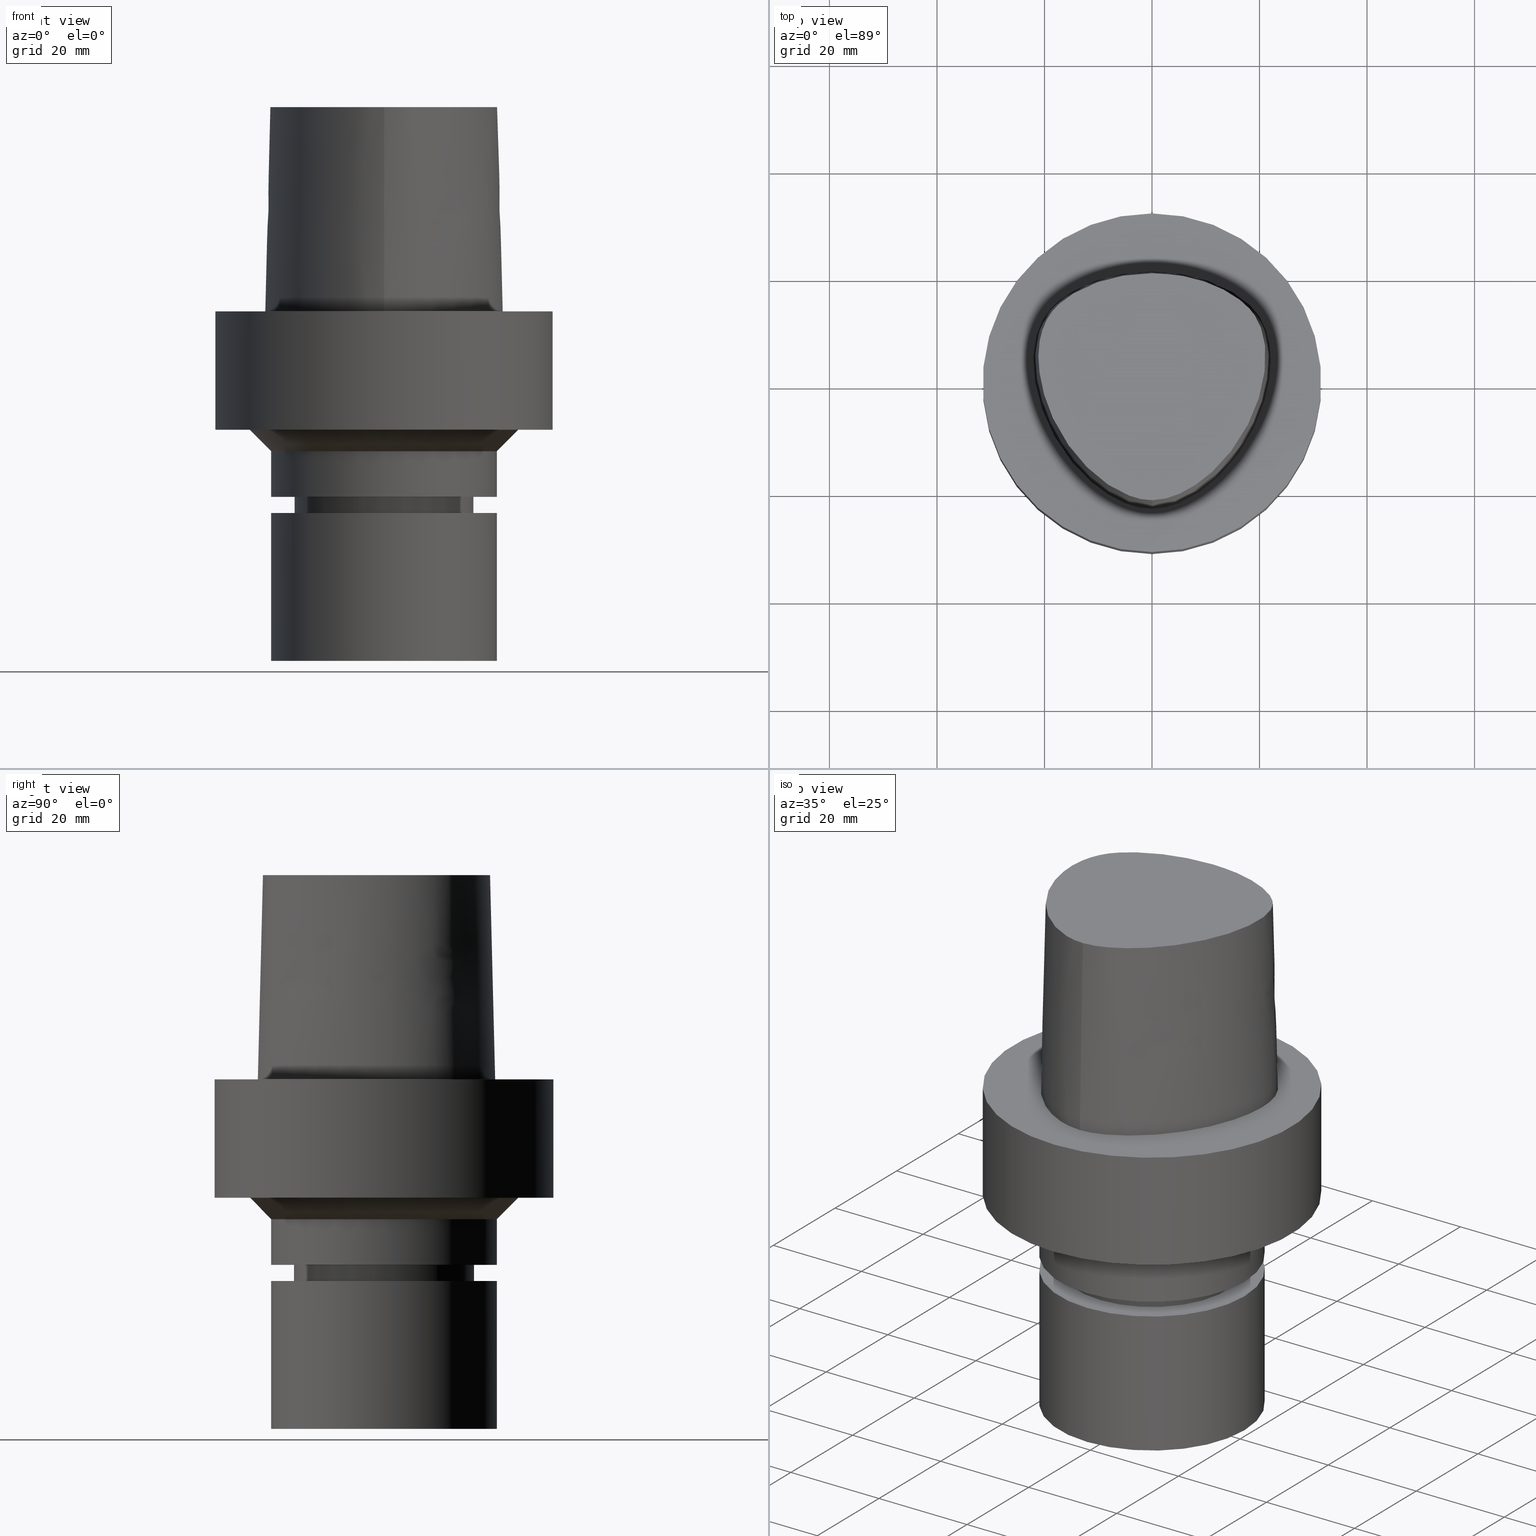
[diagram: canonical four-view strip — front | top / right | iso, engineering-drawing reading convention]
A machine part, canonical four-view strip (front | top / right | iso — engineering-drawing reading convention). The complete STEP part file that produces these views, byte-faithful:
ISO-10303-21;
HEADER;
FILE_DESCRIPTION((''),'1');
FILE_NAME('V:/90_\X2\53D65F9730C730FC30BF\X0\/00_\X2\6DE18DEF30C730FC30BF\X0\/ALL/CAPTO-BKUS\X2\52A05DE556F3\X0\_201801/C6-MEGAER/C6-MEGAER25-65NL.stp','2018-02-01T08:13:47',(''),(''),'Spatial Interop R21 SP3','Kubotek KeyCreator 2011 V10.0.2 (22737)',' ');
FILE_SCHEMA(('automotive_design'));
ENDSEC;
DATA;
#1=MECHANICAL_DESIGN_GEOMETRIC_PRESENTATION_REPRESENTATION(' ',(#14,#15,#16,#17,#18,#19,#20,#21,#22,#23,#24,#25,#26,#27,#28,#29,#30,#31,#32,#33,#34,#35,#36,#37,#38,#39,#40,#41,#42,#43,#44,#45,#46,#47,#48,#49,#50,#51,#52,#53),#10);
#2=PRODUCT_DEFINITION_CONTEXT('',#54,'design');
#3=APPLICATION_PROTOCOL_DEFINITION('INTERNATIONAL STANDARD','automotive_design',1994,#54);
#4=PRODUCT_CATEGORY_RELATIONSHIP('NONE','NONE',#55,#56);
#5=SHAPE_DEFINITION_REPRESENTATION(#57,#58);
#6=PRODUCT_DEFINITION_CONTEXT('',#59,'design');
#7=APPLICATION_PROTOCOL_DEFINITION('INTERNATIONAL STANDARD','automotive_design',1994,#59);
#8=PRODUCT_CATEGORY_RELATIONSHIP('NONE','NONE',#60,#61);
#9=SHAPE_DEFINITION_REPRESENTATION(#62,#63);
#10= (GEOMETRIC_REPRESENTATION_CONTEXT(3)GLOBAL_UNCERTAINTY_ASSIGNED_CONTEXT((#66))GLOBAL_UNIT_ASSIGNED_CONTEXT((#68,#69,#70))REPRESENTATION_CONTEXT('NONE','WORKSPACE'));
#14=STYLED_ITEM('',(#72),#73);
#15=STYLED_ITEM('',(#74,#75),#76);
#16=STYLED_ITEM('',(#77),#78);
#17=STYLED_ITEM('',(#79),#80);
#18=STYLED_ITEM('',(#81),#82);
#19=STYLED_ITEM('',(#83,#84),#85);
#20=STYLED_ITEM('',(#86,#87),#88);
#21=STYLED_ITEM('',(#89),#90);
#22=STYLED_ITEM('',(#91),#92);
#23=STYLED_ITEM('',(#93,#94),#95);
#24=STYLED_ITEM('',(#96),#97);
#25=STYLED_ITEM('',(#98),#99);
#26=STYLED_ITEM('',(#100),#101);
#27=STYLED_ITEM('',(#102),#103);
#28=STYLED_ITEM('',(#104,#105),#106);
#29=STYLED_ITEM('',(#107,#108),#109);
#30=STYLED_ITEM('',(#110),#111);
#31=STYLED_ITEM('',(#112,#113),#114);
#32=STYLED_ITEM('',(#115),#116);
#33=STYLED_ITEM('',(#117,#118),#119);
#34=STYLED_ITEM('',(#120),#121);
#35=STYLED_ITEM('',(#122),#123);
#36=STYLED_ITEM('',(#124),#125);
#37=STYLED_ITEM('',(#126,#127),#128);
#38=STYLED_ITEM('',(#129,#130),#131);
#39=STYLED_ITEM('',(#132,#133),#134);
#40=STYLED_ITEM('',(#135,#136),#137);
#41=STYLED_ITEM('',(#138),#139);
#42=STYLED_ITEM('',(#140,#141),#142);
#43=STYLED_ITEM('',(#143,#144),#145);
#44=STYLED_ITEM('',(#146),#147);
#45=STYLED_ITEM('',(#148),#149);
#46=STYLED_ITEM('',(#150,#151),#152);
#47=STYLED_ITEM('',(#153,#154),#155);
#48=STYLED_ITEM('',(#156,#157),#158);
#49=STYLED_ITEM('',(#159,#160),#161);
#50=STYLED_ITEM('',(#162,#163),#164);
#51=STYLED_ITEM('',(#165,#166),#167);
#52=STYLED_ITEM('',(#168),#169);
#53=STYLED_ITEM('',(#170),#171);
#54=APPLICATION_CONTEXT(' ');
#55=PRODUCT_CATEGORY('part','NONE');
#56=PRODUCT_RELATED_PRODUCT_CATEGORY('detail',' ',(#172));
#57=PRODUCT_DEFINITION_SHAPE('NONE','NONE',#173);
#58=ADVANCED_BREP_SHAPE_REPRESENTATION('Unnamed[1]',(#142,#174),#10);
#59=APPLICATION_CONTEXT(' ');
#60=PRODUCT_CATEGORY('part','NONE');
#61=PRODUCT_RELATED_PRODUCT_CATEGORY('detail',' ',(#175));
#62=PRODUCT_DEFINITION_SHAPE('NONE','NONE',#176);
#63=ADVANCED_BREP_SHAPE_REPRESENTATION('Unnamed[1]',(#95,#177),#10);
#66=UNCERTAINTY_MEASURE_WITH_UNIT(LENGTH_MEASURE(1.0E-006),#68,'','');
#68= (CONVERSION_BASED_UNIT('MILLIMETRE',#180)LENGTH_UNIT()NAMED_UNIT(#183));
#69= (NAMED_UNIT(#185)PLANE_ANGLE_UNIT()SI_UNIT($,.RADIAN.));
#70= (NAMED_UNIT(#185)SOLID_ANGLE_UNIT()SI_UNIT($,.STERADIAN.));
#72=PRESENTATION_STYLE_ASSIGNMENT((#191));
#73=EDGE_CURVE('Unnamed[1]',#192,#192,#193,.T.);
#74=PRESENTATION_STYLE_ASSIGNMENT((#194));
#75=PRESENTATION_STYLE_ASSIGNMENT((#195));
#76=ADVANCED_FACE('Unnamed[1]',(#196,#197),#198,.T.);
#77=PRESENTATION_STYLE_ASSIGNMENT((#199));
#78=EDGE_CURVE('Unnamed[1]',#200,#200,#201,.T.);
#79=PRESENTATION_STYLE_ASSIGNMENT((#202));
#80=EDGE_CURVE('Unnamed[1]',#203,#204,#205,.T.);
#81=PRESENTATION_STYLE_ASSIGNMENT((#206));
#82=EDGE_CURVE('Unnamed[1]',#207,#204,#208,.T.);
#83=PRESENTATION_STYLE_ASSIGNMENT((#209));
#84=PRESENTATION_STYLE_ASSIGNMENT((#210));
#85=ADVANCED_FACE('Unnamed[1]',(#211),#212,.T.);
#86=PRESENTATION_STYLE_ASSIGNMENT((#213));
#87=PRESENTATION_STYLE_ASSIGNMENT((#214));
#88=ADVANCED_FACE('Unnamed[1]',(#215),#216,.T.);
#89=PRESENTATION_STYLE_ASSIGNMENT((#217));
#90=EDGE_CURVE('Unnamed[1]',#207,#203,#218,.T.);
#91=PRESENTATION_STYLE_ASSIGNMENT((#219));
#92=EDGE_CURVE('Unnamed[1]',#220,#220,#221,.T.);
#93=PRESENTATION_STYLE_ASSIGNMENT((#222));
#94=PRESENTATION_STYLE_ASSIGNMENT((#223));
#95=MANIFOLD_SOLID_BREP('Unnamed[1]',#224);
#96=PRESENTATION_STYLE_ASSIGNMENT((#225));
#97=EDGE_CURVE('Unnamed[1]',#226,#226,#227,.T.);
#98=PRESENTATION_STYLE_ASSIGNMENT((#228));
#99=EDGE_CURVE('Unnamed[1]',#229,#229,#230,.T.);
#100=PRESENTATION_STYLE_ASSIGNMENT((#231));
#101=EDGE_CURVE('Unnamed[1]',#232,#203,#233,.T.);
#102=PRESENTATION_STYLE_ASSIGNMENT((#234));
#103=EDGE_CURVE('Unnamed[1]',#235,#235,#236,.T.);
#104=PRESENTATION_STYLE_ASSIGNMENT((#237));
#105=PRESENTATION_STYLE_ASSIGNMENT((#238));
#106=ADVANCED_FACE('Unnamed[1]',(#239),#240,.T.);
#107=PRESENTATION_STYLE_ASSIGNMENT((#241));
#108=PRESENTATION_STYLE_ASSIGNMENT((#242));
#109=ADVANCED_FACE('Unnamed[1]',(#243,#244),#245,.T.);
#110=PRESENTATION_STYLE_ASSIGNMENT((#246));
#111=EDGE_CURVE('Unnamed[1]',#247,#247,#248,.T.);
#112=PRESENTATION_STYLE_ASSIGNMENT((#249));
#113=PRESENTATION_STYLE_ASSIGNMENT((#250));
#114=ADVANCED_FACE('Unnamed[1]',(#251),#252,.T.);
#115=PRESENTATION_STYLE_ASSIGNMENT((#253));
#116=EDGE_CURVE('Unnamed[1]',#204,#232,#254,.T.);
#117=PRESENTATION_STYLE_ASSIGNMENT((#255));
#118=PRESENTATION_STYLE_ASSIGNMENT((#256));
#119=ADVANCED_FACE('Unnamed[1]',(#257),#258,.T.);
#120=PRESENTATION_STYLE_ASSIGNMENT((#259));
#121=EDGE_CURVE('Unnamed[1]',#260,#260,#261,.T.);
#122=PRESENTATION_STYLE_ASSIGNMENT((#262));
#123=EDGE_CURVE('Unnamed[1]',#263,#263,#264,.T.);
#124=PRESENTATION_STYLE_ASSIGNMENT((#265));
#125=EDGE_CURVE('Unnamed[1]',#266,#266,#267,.T.);
#126=PRESENTATION_STYLE_ASSIGNMENT((#268));
#127=PRESENTATION_STYLE_ASSIGNMENT((#269));
#128=ADVANCED_FACE('Unnamed[1]',(#270),#271,.T.);
#129=PRESENTATION_STYLE_ASSIGNMENT((#272));
#130=PRESENTATION_STYLE_ASSIGNMENT((#273));
#131=ADVANCED_FACE('Unnamed[1]',(#274,#275),#276,.T.);
#132=PRESENTATION_STYLE_ASSIGNMENT((#277));
#133=PRESENTATION_STYLE_ASSIGNMENT((#278));
#134=ADVANCED_FACE('Unnamed[1]',(#279,#280),#281,.T.);
#135=PRESENTATION_STYLE_ASSIGNMENT((#282));
#136=PRESENTATION_STYLE_ASSIGNMENT((#283));
#137=ADVANCED_FACE('Unnamed[1]',(#284,#285),#286,.T.);
#138=PRESENTATION_STYLE_ASSIGNMENT((#287));
#139=EDGE_CURVE('Unnamed[1]',#288,#207,#289,.T.);
#140=PRESENTATION_STYLE_ASSIGNMENT((#290));
#141=PRESENTATION_STYLE_ASSIGNMENT((#291));
#142=MANIFOLD_SOLID_BREP('Unnamed[1]',#292);
#143=PRESENTATION_STYLE_ASSIGNMENT((#293));
#144=PRESENTATION_STYLE_ASSIGNMENT((#294));
#145=ADVANCED_FACE('Unnamed[1]',(#295),#296,.T.);
#146=PRESENTATION_STYLE_ASSIGNMENT((#297));
#147=EDGE_CURVE('Unnamed[1]',#288,#232,#298,.T.);
#148=PRESENTATION_STYLE_ASSIGNMENT((#299));
#149=EDGE_CURVE('Unnamed[1]',#207,#288,#300,.T.);
#150=PRESENTATION_STYLE_ASSIGNMENT((#301));
#151=PRESENTATION_STYLE_ASSIGNMENT((#302));
#152=ADVANCED_FACE('Unnamed[1]',(#303,#304),#305,.T.);
#153=PRESENTATION_STYLE_ASSIGNMENT((#306));
#154=PRESENTATION_STYLE_ASSIGNMENT((#307));
#155=ADVANCED_FACE('Unnamed[1]',(#308,#309),#310,.T.);
#156=PRESENTATION_STYLE_ASSIGNMENT((#311));
#157=PRESENTATION_STYLE_ASSIGNMENT((#312));
#158=ADVANCED_FACE('Unnamed[1]',(#313,#314),#315,.T.);
#159=PRESENTATION_STYLE_ASSIGNMENT((#316));
#160=PRESENTATION_STYLE_ASSIGNMENT((#317));
#161=ADVANCED_FACE('Unnamed[1]',(#318,#319),#320,.T.);
#162=PRESENTATION_STYLE_ASSIGNMENT((#321));
#163=PRESENTATION_STYLE_ASSIGNMENT((#322));
#164=ADVANCED_FACE('Unnamed[1]',(#323,#324),#325,.T.);
#165=PRESENTATION_STYLE_ASSIGNMENT((#326));
#166=PRESENTATION_STYLE_ASSIGNMENT((#327));
#167=ADVANCED_FACE('Unnamed[1]',(#328,#329),#330,.T.);
#168=PRESENTATION_STYLE_ASSIGNMENT((#331));
#169=EDGE_CURVE('Unnamed[1]',#332,#332,#333,.T.);
#170=PRESENTATION_STYLE_ASSIGNMENT((#334));
#171=EDGE_CURVE('Unnamed[1]',#335,#335,#336,.T.);
#172=PRODUCT('Unnamed[1]','Unnamed[1]','PART-Unnamed[1]-DESC',(#337));
#173=PRODUCT_DEFINITION('NONE','NONE',#338,#2);
#174=AXIS2_PLACEMENT_3D('',#339,#340,#341);
#175=PRODUCT('Unnamed[1]','Unnamed[1]','PART-Unnamed[1]-DESC',(#342));
#176=PRODUCT_DEFINITION('NONE','NONE',#343,#6);
#177=AXIS2_PLACEMENT_3D('',#344,#345,#346);
#180=LENGTH_MEASURE_WITH_UNIT(LENGTH_MEASURE(1.0),#347);
#183=DIMENSIONAL_EXPONENTS(1.0,0.0,0.0,0.0,0.0,0.0,0.0);
#185=DIMENSIONAL_EXPONENTS(0.0,0.0,0.0,0.0,0.0,0.0,0.0);
#191=CURVE_STYLE('',#348,POSITIVE_LENGTH_MEASURE(1000.0),#349);
#192=VERTEX_POINT('',#350);
#193=CIRCLE('',#351,21.0);
#194=SURFACE_STYLE_USAGE(.BOTH.,#352);
#195=CURVE_STYLE('',#353,POSITIVE_LENGTH_MEASURE(1000.0),#354);
#196=FACE_BOUND('',#355,.T.);
#197=FACE_BOUND('',#356,.T.);
#198=CYLINDRICAL_SURFACE('',#357,21.0000000000002);
#199=CURVE_STYLE('',#358,POSITIVE_LENGTH_MEASURE(1000.0),#359);
#200=VERTEX_POINT('',#360);
#201=CIRCLE('',#361,16.7500000000017);
#202=CURVE_STYLE('',#362,POSITIVE_LENGTH_MEASURE(1000.0),#363);
#203=VERTEX_POINT('',#364);
#204=VERTEX_POINT('',#365);
#205=CIRCLE('',#366,0.949936168436318);
#206=CURVE_STYLE('',#367,POSITIVE_LENGTH_MEASURE(1000.0),#368);
#207=VERTEX_POINT('',#369);
#208=LINE('',#370,#371);
#209=SURFACE_STYLE_USAGE(.BOTH.,#372);
#210=CURVE_STYLE('',#373,POSITIVE_LENGTH_MEASURE(1000.0),#374);
#211=FACE_OUTER_BOUND('',#375,.T.);
#212=B_SPLINE_SURFACE_WITH_KNOTS('',3,3,((#376,#377,#378,#379),(#380,#381,#382,#383),(#384,#385,#386,#387),(#388,#389,#390,#391),(#392,#393,#394,#395),(#396,#397,#398,#399),(#400,#401,#402,#403),(#404,#405,#406,#407),(#408,#409,#410,#411),(#412,#413,#414,#415),(#416,#417,#418,#419),(#420,#421,#422,#423),(#424,#425,#426,#427),(#428,#429,#430,#431),(#432,#433,#434,#435),(#436,#437,#438,#439),(#440,#441,#442,#443),(#444,#445,#446,#447)),.UNSPECIFIED.,.F.,.F.,.F.,(4,1,1,1,1,1,1,1,1,2,1,1,1,1,4),(4,4),(-6.6151339308743,-6.20168806019465,-5.78824218951501,-5.37479631883537,-4.96135044815572,-4.13445870679644,-3.30756696543715,-2.89412109475751,-2.48067522407786,-2.06722935339822,-1.65378348271857,-1.24033761203893,-0.826891741359287,-0.413445870679644,0.0),(-3.8,0.0),.UNSPECIFIED.);
#213=SURFACE_STYLE_USAGE(.BOTH.,#448);
#214=CURVE_STYLE('',#449,POSITIVE_LENGTH_MEASURE(1000.0),#450);
#215=FACE_OUTER_BOUND('',#451,.T.);
#216=PLANE('',#452);
#217=CURVE_STYLE('',#453,POSITIVE_LENGTH_MEASURE(1000.0),#454);
#218=LINE('',#455,#456);
#219=CURVE_STYLE('',#457,POSITIVE_LENGTH_MEASURE(1000.0),#458);
#220=VERTEX_POINT('',#459);
#221=CIRCLE('',#460,21.0000000000002);
#222=SURFACE_STYLE_USAGE(.BOTH.,#461);
#223=CURVE_STYLE('',#462,POSITIVE_LENGTH_MEASURE(1000.0),#463);
#224=CLOSED_SHELL('',(#128,#114,#134));
#225=CURVE_STYLE('',#464,POSITIVE_LENGTH_MEASURE(1000.0),#465);
#226=VERTEX_POINT('',#466);
#227=CIRCLE('',#467,16.7499999999907);
#228=CURVE_STYLE('',#468,POSITIVE_LENGTH_MEASURE(1000.0),#469);
#229=VERTEX_POINT('',#470);
#230=CIRCLE('',#471,21.0000000000001);
#231=CURVE_STYLE('',#472,POSITIVE_LENGTH_MEASURE(1000.0),#473);
#232=VERTEX_POINT('',#474);
#233=B_SPLINE_CURVE_WITH_KNOTS('',3,(#475,#476,#477,#478,#479,#480,#481,#482,#483,#484,#485,#486,#487,#488,#489,#490,#491,#492),.UNSPECIFIED.,.F.,.F.,(4,1,1,1,1,1,1,1,1,2,1,1,1,1,4),(-6.6151339308743,-6.20168806019465,-5.78824218951501,-5.37479631883537,-4.96135044815572,-4.13445870679644,-3.30756696543715,-2.89412109475751,-2.48067522407786,-2.06722935339822,-1.65378348271857,-1.24033761203893,-0.826891741359287,-0.413445870679644,0.0),.UNSPECIFIED.);
#234=CURVE_STYLE('',#493,POSITIVE_LENGTH_MEASURE(1000.0),#494);
#235=VERTEX_POINT('',#495);
#236=CIRCLE('',#496,21.0);
#237=SURFACE_STYLE_USAGE(.BOTH.,#497);
#238=CURVE_STYLE('',#498,POSITIVE_LENGTH_MEASURE(1000.0),#499);
#239=FACE_OUTER_BOUND('',#500,.T.);
#240=PLANE('',#501);
#241=SURFACE_STYLE_USAGE(.BOTH.,#502);
#242=CURVE_STYLE('',#503,POSITIVE_LENGTH_MEASURE(1000.0),#504);
#243=FACE_BOUND('',#505,.T.);
#244=FACE_BOUND('',#506,.T.);
#245=CONICAL_SURFACE('',#507,15.4500000000003,0.523598775598042);
#246=CURVE_STYLE('',#508,POSITIVE_LENGTH_MEASURE(1000.0),#509);
#247=VERTEX_POINT('',#510);
#248=CIRCLE('',#511,31.5);
#249=SURFACE_STYLE_USAGE(.BOTH.,#512);
#250=CURVE_STYLE('',#513,POSITIVE_LENGTH_MEASURE(1000.0),#514);
#251=FACE_OUTER_BOUND('',#515,.T.);
#252=PLANE('',#516);
#253=CURVE_STYLE('',#517,POSITIVE_LENGTH_MEASURE(1000.0),#518);
#254=B_SPLINE_CURVE_WITH_KNOTS('',3,(#519,#520,#521,#522,#523,#524,#525,#526,#527,#528,#529,#530,#531,#532,#533,#534,#535),.UNSPECIFIED.,.F.,.F.,(4,1,1,1,1,1,1,1,1,1,1,1,1,1,4),(-13.2302678617486,-12.816821991069,-12.4033761203893,-11.9899302497097,-11.57648437903,-11.1630385083504,-10.9563155730106,-10.7495926376707,-10.3361467669911,-9.92270089631145,-9.09580915495216,-8.26891741359287,-7.44202567223358,-7.02857980155394,-6.6151339308743),.UNSPECIFIED.);
#255=SURFACE_STYLE_USAGE(.BOTH.,#536);
#256=CURVE_STYLE('',#537,POSITIVE_LENGTH_MEASURE(1000.0),#538);
#257=FACE_OUTER_BOUND('',#539,.T.);
#258=CONICAL_SURFACE('',#540,1.0,0.0249931148600041);
#259=CURVE_STYLE('',#541,POSITIVE_LENGTH_MEASURE(1000.0),#542);
#260=VERTEX_POINT('',#543);
#261=CIRCLE('',#544,16.0);
#262=CURVE_STYLE('',#545,POSITIVE_LENGTH_MEASURE(1000.0),#546);
#263=VERTEX_POINT('',#547);
#264=CIRCLE('',#548,14.9000000000006);
#265=CURVE_STYLE('',#549,POSITIVE_LENGTH_MEASURE(1000.0),#550);
#266=VERTEX_POINT('',#551);
#267=CIRCLE('',#552,31.5);
#268=SURFACE_STYLE_USAGE(.BOTH.,#553);
#269=CURVE_STYLE('',#554,POSITIVE_LENGTH_MEASURE(1000.0),#555);
#270=FACE_OUTER_BOUND('',#556,.T.);
#271=PLANE('',#557);
#272=SURFACE_STYLE_USAGE(.BOTH.,#558);
#273=CURVE_STYLE('',#559,POSITIVE_LENGTH_MEASURE(1000.0),#560);
#274=FACE_BOUND('',#561,.T.);
#275=FACE_OUTER_BOUND('',#562,.T.);
#276=PLANE('',#563);
#277=SURFACE_STYLE_USAGE(.BOTH.,#564);
#278=CURVE_STYLE('',#565,POSITIVE_LENGTH_MEASURE(1000.0),#566);
#279=FACE_BOUND('',#567,.T.);
#280=FACE_BOUND('',#568,.T.);
#281=CYLINDRICAL_SURFACE('',#569,21.0);
#282=SURFACE_STYLE_USAGE(.BOTH.,#570);
#283=CURVE_STYLE('',#571,POSITIVE_LENGTH_MEASURE(1000.0),#572);
#284=FACE_BOUND('',#573,.T.);
#285=FACE_BOUND('',#574,.T.);
#286=CYLINDRICAL_SURFACE('',#575,16.0);
#287=CURVE_STYLE('',#576,POSITIVE_LENGTH_MEASURE(1000.0),#577);
#288=VERTEX_POINT('',#578);
#289=B_SPLINE_CURVE_WITH_KNOTS('',3,(#579,#580,#581,#582,#583,#584,#585,#586,#587,#588,#589,#590,#591,#592,#593,#594),.UNSPECIFIED.,.F.,.F.,(4,1,1,1,1,1,1,1,1,1,1,1,1,4),(6.61513393087476,6.99917207152274,7.48193246986995,7.96289324787093,8.45540287038584,9.10291653679981,9.67129810936083,10.1618749681153,10.6358867802489,11.1080734988593,11.6043706019633,12.09451993853,12.6985979284494,13.2302678617486),.UNSPECIFIED.);
#290=SURFACE_STYLE_USAGE(.BOTH.,#595);
#291=CURVE_STYLE('',#596,POSITIVE_LENGTH_MEASURE(1000.0),#597);
#292=CLOSED_SHELL('',(#145,#85,#119,#106,#152,#161,#131,#164,#76,#167,#158,#155,#137,#109,#88));
#293=SURFACE_STYLE_USAGE(.BOTH.,#598);
#294=CURVE_STYLE('',#599,POSITIVE_LENGTH_MEASURE(1000.0),#600);
#295=FACE_OUTER_BOUND('',#601,.T.);
#296=B_SPLINE_SURFACE_WITH_KNOTS('',3,3,((#602,#603,#604,#605),(#606,#607,#608,#609),(#610,#611,#612,#613),(#614,#615,#616,#617),(#618,#619,#620,#621),(#622,#623,#624,#625),(#626,#627,#628,#629),(#630,#631,#632,#633),(#634,#635,#636,#637),(#638,#639,#640,#641),(#642,#643,#644,#645),(#646,#647,#648,#649),(#650,#651,#652,#653),(#654,#655,#656,#657),(#658,#659,#660,#661),(#662,#663,#664,#665),(#666,#667,#668,#669)),.UNSPECIFIED.,.F.,.F.,.F.,(4,1,1,1,1,1,1,1,1,1,1,1,1,1,4),(4,4),(-13.2302678617486,-12.816821991069,-12.4033761203893,-11.9899302497097,-11.57648437903,-11.1630385083504,-10.9563155730106,-10.7495926376707,-10.3361467669911,-9.92270089631145,-9.09580915495216,-8.26891741359287,-7.44202567223358,-7.02857980155394,-6.6151339308743),(-3.8,0.0),.UNSPECIFIED.);
#297=CURVE_STYLE('',#670,POSITIVE_LENGTH_MEASURE(1000.0),#671);
#298=LINE('',#672,#673);
#299=CURVE_STYLE('',#674,POSITIVE_LENGTH_MEASURE(1000.0),#675);
#300=B_SPLINE_CURVE_WITH_KNOTS('',3,(#676,#677,#678,#679,#680,#681,#682,#683,#684,#685,#686,#687,#688,#689,#690,#691),.UNSPECIFIED.,.F.,.F.,(4,1,1,1,1,1,1,1,1,1,1,1,1,4),(0.0,0.447924670568964,0.9388024242536,1.50591409090711,2.07314340012323,2.72424957442464,3.2253501842849,3.80982102049476,4.34867996267067,4.85900173381144,5.37972031856977,6.03459825488646,6.61113557741484,6.61513393087395),.UNSPECIFIED.);
#301=SURFACE_STYLE_USAGE(.BOTH.,#692);
#302=CURVE_STYLE('',#693,POSITIVE_LENGTH_MEASURE(1000.0),#694);
#303=FACE_BOUND('',#695,.T.);
#304=FACE_OUTER_BOUND('',#696,.T.);
#305=PLANE('',#697);
#306=SURFACE_STYLE_USAGE(.BOTH.,#698);
#307=CURVE_STYLE('',#699,POSITIVE_LENGTH_MEASURE(1000.0),#700);
#308=FACE_BOUND('',#701,.T.);
#309=FACE_BOUND('',#702,.T.);
#310=CONICAL_SURFACE('',#703,16.3750000000008,1.04719755120065);
#311=SURFACE_STYLE_USAGE(.BOTH.,#704);
#312=CURVE_STYLE('',#705,POSITIVE_LENGTH_MEASURE(1000.0),#706);
#313=FACE_BOUND('',#707,.T.);
#314=FACE_BOUND('',#708,.T.);
#315=CYLINDRICAL_SURFACE('',#709,16.7499999999962);
#316=SURFACE_STYLE_USAGE(.BOTH.,#710);
#317=CURVE_STYLE('',#711,POSITIVE_LENGTH_MEASURE(1000.0),#712);
#318=FACE_BOUND('',#713,.T.);
#319=FACE_BOUND('',#714,.T.);
#320=CYLINDRICAL_SURFACE('',#715,31.5);
#321=SURFACE_STYLE_USAGE(.BOTH.,#716);
#322=CURVE_STYLE('',#717,POSITIVE_LENGTH_MEASURE(1000.0),#718);
#323=FACE_BOUND('',#719,.T.);
#324=FACE_BOUND('',#720,.T.);
#325=CONICAL_SURFACE('',#721,23.0000000000002,0.78539816339752);
#326=SURFACE_STYLE_USAGE(.BOTH.,#722);
#327=CURVE_STYLE('',#723,POSITIVE_LENGTH_MEASURE(1000.0),#724);
#328=FACE_BOUND('',#725,.T.);
#329=FACE_OUTER_BOUND('',#726,.T.);
#330=PLANE('',#727);
#331=CURVE_STYLE('',#728,POSITIVE_LENGTH_MEASURE(1000.0),#729);
#332=VERTEX_POINT('',#730);
#333=CIRCLE('',#731,25.0000000000002);
#334=CURVE_STYLE('',#732,POSITIVE_LENGTH_MEASURE(1000.0),#733);
#335=VERTEX_POINT('',#734);
#336=CIRCLE('',#735,16.0);
#337=PRODUCT_CONTEXT('',#54,'mechanical');
#338=PRODUCT_DEFINITION_FORMATION_WITH_SPECIFIED_SOURCE(' ','NONE',#172,.NOT_KNOWN.);
#339=CARTESIAN_POINT('',(0.0,0.0,0.0));
#340=DIRECTION('',(0.0,0.0,1.0));
#341=DIRECTION('',(1.0,0.0,0.0));
#342=PRODUCT_CONTEXT('',#59,'mechanical');
#343=PRODUCT_DEFINITION_FORMATION_WITH_SPECIFIED_SOURCE(' ','NONE',#175,.NOT_KNOWN.);
#344=CARTESIAN_POINT('',(0.0,0.0,0.0));
#345=DIRECTION('',(0.0,0.0,1.0));
#346=DIRECTION('',(1.0,0.0,0.0));
#347= (NAMED_UNIT(#183)LENGTH_UNIT()SI_UNIT(.MILLI.,.METRE.));
#348=DRAUGHTING_PRE_DEFINED_CURVE_FONT('continuous');
#349=COLOUR_RGB('',0.0,1.0,0.0);
#350=CARTESIAN_POINT('',(2.29621274840129E-015,21.0,-37.5));
#351=AXIS2_PLACEMENT_3D('',#737,#738,#739);
#352=SURFACE_SIDE_STYLE('',(#740));
#353=DRAUGHTING_PRE_DEFINED_CURVE_FONT('continuous');
#354=COLOUR_RGB('',0.0,1.0,0.0);
#355=EDGE_LOOP('',(#741));
#356=EDGE_LOOP('',(#742));
#357=AXIS2_PLACEMENT_3D('',#743,#744,#745);
#358=DRAUGHTING_PRE_DEFINED_CURVE_FONT('continuous');
#359=COLOUR_RGB('',0.0,1.0,0.0);
#360=CARTESIAN_POINT('',(2.47790899332347E-015,16.7500000000017,-40.4673248654009));
#361=AXIS2_PLACEMENT_3D('',#746,#747,#748);
#362=DRAUGHTING_PRE_DEFINED_CURVE_FONT('continuous');
#363=COLOUR_RGB('',0.0,1.0,0.0);
#364=CARTESIAN_POINT('',(-0.045171994691285,20.6766009553285,1.6755590516169E-031));
#365=CARTESIAN_POINT('',(0.044682985379347,20.6765087343109,1.61778115328528E-031));
#366=AXIS2_PLACEMENT_3D('',#749,#750,#751);
#367=DRAUGHTING_PRE_DEFINED_CURVE_FONT('continuous');
#368=COLOUR_RGB('',0.0,1.0,0.0);
#369=CARTESIAN_POINT('',(-0.001218547003662,19.7276821925089,38.0));
#370=CARTESIAN_POINT('',(-0.001218547003662,19.7276821925089,38.0));
#371=VECTOR('',#752,38.0118715503078);
#372=SURFACE_SIDE_STYLE('',(#753));
#373=DRAUGHTING_PRE_DEFINED_CURVE_FONT('continuous');
#374=COLOUR_RGB('',0.0,1.0,0.0);
#375=EDGE_LOOP('',(#754,#755,#756,#757));
#376=CARTESIAN_POINT('',(0.038736923393866,-22.5191997536361,38.0));
#377=CARTESIAN_POINT('',(0.04035580478973,-22.8358410047159,25.3333333333066));
#378=CARTESIAN_POINT('',(0.041974686185626,-23.1524822558133,12.6666666666934));
#379=CARTESIAN_POINT('',(0.04359356758149,-23.4691235068931,7.78075697532443E-032));
#380=CARTESIAN_POINT('',(-1.33786123484754,-22.5261650259856,38.0));
#381=CARTESIAN_POINT('',(-1.38240731367927,-22.8430399310626,25.3333333333066));
#382=CARTESIAN_POINT('',(-1.42695339249092,-23.1599147815484,12.6666666666934));
#383=CARTESIAN_POINT('',(-1.4714994713963,-23.4767895315797,2.46519032881566E-032));
#384=CARTESIAN_POINT('',(-4.08909358431842,-21.9268839879558,38.0));
#385=CARTESIAN_POINT('',(-4.20580731135515,-22.2249725500078,25.3333333333066));
#386=CARTESIAN_POINT('',(-4.32252104640446,-22.5230611651922,12.6666666666934));
#387=CARTESIAN_POINT('',(-4.43923476371401,-22.821149804767,-4.93038065763132E-032));
#388=CARTESIAN_POINT('',(-7.8333083619947,-19.9973514861616,38.0));
#389=CARTESIAN_POINT('',(-8.00568301809614,-20.2649260859405,25.3333333333066));
#390=CARTESIAN_POINT('',(-8.1780576640789,-20.532500564315,12.6666666666934));
#391=CARTESIAN_POINT('',(-8.35043230079961,-20.8000751253325,-9.86076131526265E-032));
#392=CARTESIAN_POINT('',(-11.1035071147626,-17.450554957873,38.0));
#393=CARTESIAN_POINT('',(-11.3173048160562,-17.6855739222454,25.3333333333066));
#394=CARTESIAN_POINT('',(-11.5311025116181,-17.9205928617968,12.6666666666934));
#395=CARTESIAN_POINT('',(-11.744900222602,-18.1556117874078,-1.97215226305253E-031));
#396=CARTESIAN_POINT('',(-14.9379535189057,-13.461132049697,38.0));
#397=CARTESIAN_POINT('',(-15.191622410671,-13.6542981711372,25.3333333333066));
#398=CARTESIAN_POINT('',(-15.4452913389853,-13.8474645327131,12.6666666666934));
#399=CARTESIAN_POINT('',(-15.6989602501314,-14.0406306929147,-1.97215226305253E-031));
#400=CARTESIAN_POINT('',(-18.6681263017223,-7.59391757463204,38.0));
#401=CARTESIAN_POINT('',(-18.9571800800711,-7.73136168081928,25.3333333333066));
#402=CARTESIAN_POINT('',(-19.2462337287194,-7.86880572399774,12.6666666666934));
#403=CARTESIAN_POINT('',(-19.5352875070682,-8.00624990770787,1.97215226305253E-031));
#404=CARTESIAN_POINT('',(-20.7857899858339,-0.952862819790525,38.0));
#405=CARTESIAN_POINT('',(-21.0973808305434,-1.02218087467418,25.3333333333066));
#406=CARTESIAN_POINT('',(-21.408971677436,-1.09149899580772,12.6666666666934));
#407=CARTESIAN_POINT('',(-21.7205626190491,-1.16081708945282,0.0));
#408=CARTESIAN_POINT('',(-21.2911760556836,4.5469215763113,38.0));
#409=CARTESIAN_POINT('',(-21.610337904926,4.54783292082248,25.3333333333066));
#410=CARTESIAN_POINT('',(-21.9294998290918,4.54874426225691,12.6666666666934));
#411=CARTESIAN_POINT('',(-22.2486616783342,4.54965558738736,0.0));
#412=CARTESIAN_POINT('',(-20.7345309521958,8.74909381391006,38.0));
#413=CARTESIAN_POINT('',(-21.0445680426217,8.83349432450556,25.3333333333066));
#414=CARTESIAN_POINT('',(-21.3546050933631,8.91789488065068,12.6666666666934));
#415=CARTESIAN_POINT('',(-21.6646421256468,9.00229539124618,0.0));
#416=CARTESIAN_POINT('',(-19.5531512296439,11.3174844040833,38.0));
#417=CARTESIAN_POINT('',(-19.8336219699984,11.4710077674213,25.3333333333066));
#418=CARTESIAN_POINT('',(-20.1140927680763,11.6245311337623,12.6666666666934));
#419=CARTESIAN_POINT('',(-20.3945635471922,11.7780544971003,0.0));
#420=CARTESIAN_POINT('',(-17.9100913688793,13.524027510437,38.0));
#421=CARTESIAN_POINT('',(-18.1375785458768,13.7487051053655,25.3333333333066));
#422=CARTESIAN_POINT('',(-18.365065665211,13.9733826973296,12.6666666666934));
#423=CARTESIAN_POINT('',(-18.5925528034471,14.1980602922581,0.0));
#424=CARTESIAN_POINT('',(-15.7996349656398,15.3762170634413,38.0));
#425=CARTESIAN_POINT('',(-15.9739761051783,15.6434029846179,25.3333333333066));
#426=CARTESIAN_POINT('',(-16.1483172726872,15.9105889315134,12.6666666666934));
#427=CARTESIAN_POINT('',(-16.3226584122258,16.1777748720707,0.0));
#428=CARTESIAN_POINT('',(-12.1175640002064,17.3825162484012,38.0));
#429=CARTESIAN_POINT('',(-12.2475895903055,17.6724842099619,25.3333333333066));
#430=CARTESIAN_POINT('',(-12.3776152070492,17.9624521925696,12.6666666666934));
#431=CARTESIAN_POINT('',(-12.5076407874579,18.2524201541303,9.86076131526265E-032));
#432=CARTESIAN_POINT('',(-8.21761151654222,18.7588585989994,38.0));
#433=CARTESIAN_POINT('',(-8.30099497910627,19.0656105427881,25.3333333333066));
#434=CARTESIAN_POINT('',(-8.38437843913309,19.3723624535439,12.6666666666934));
#435=CARTESIAN_POINT('',(-8.46776192107786,19.679114377952,9.86076131526265E-032));
#436=CARTESIAN_POINT('',(-4.13466093881225,19.5396850837055,38.0));
#437=CARTESIAN_POINT('',(-4.16658562115465,19.8557172636973,25.3333333333066));
#438=CARTESIAN_POINT('',(-4.19851029939059,20.1717494367229,12.6666666666934));
#439=CARTESIAN_POINT('',(-4.23043497193604,20.487781597334,1.97215226305253E-031));
#440=CARTESIAN_POINT('',(-1.37917220403684,19.6638560588908,38.0));
#441=CARTESIAN_POINT('',(-1.39382511685176,19.98016223565,25.3333333333066));
#442=CARTESIAN_POINT('',(-1.40847802945569,20.296468399885,12.6666666666934));
#443=CARTESIAN_POINT('',(-1.42313094248379,20.6127745766442,1.10933564796705E-031));
#444=CARTESIAN_POINT('',(-0.001218547003662,19.7276821925089,38.0));
#445=CARTESIAN_POINT('',(-0.015869696232855,20.043988446791,25.3333333333066));
#446=CARTESIAN_POINT('',(-0.030520845462092,20.3602947010464,12.6666666666934));
#447=CARTESIAN_POINT('',(-0.045171994691285,20.6766009553285,1.6755590516169E-031));
#448=SURFACE_SIDE_STYLE('',(#758));
#449=DRAUGHTING_PRE_DEFINED_CURVE_FONT('continuous');
#450=COLOUR_RGB('',0.0,1.0,0.0);
#451=EDGE_LOOP('',(#759));
#452=AXIS2_PLACEMENT_3D('',#760,#761,#762);
#453=DRAUGHTING_PRE_DEFINED_CURVE_FONT('continuous');
#454=COLOUR_RGB('',0.0,1.0,0.0);
#455=CARTESIAN_POINT('',(-0.001218547003662,19.7276821925089,38.0));
#456=VECTOR('',#763,38.0118715498723);
#457=DRAUGHTING_PRE_DEFINED_CURVE_FONT('continuous');
#458=COLOUR_RGB('',0.0,1.0,0.0);
#459=CARTESIAN_POINT('',(1.59204083889156E-015,21.0000000000002,-26.0));
#460=AXIS2_PLACEMENT_3D('',#764,#765,#766);
#461=SURFACE_SIDE_STYLE('',(#767));
#462=DRAUGHTING_PRE_DEFINED_CURVE_FONT('continuous');
#463=COLOUR_RGB('',0.0,1.0,0.0);
#464=DRAUGHTING_PRE_DEFINED_CURVE_FONT('continuous');
#465=COLOUR_RGB('',0.0,1.0,0.0);
#466=CARTESIAN_POINT('',(2.11251572852914E-015,16.7499999999907,-34.4999999999992));
#467=AXIS2_PLACEMENT_3D('',#768,#769,#770);
#468=DRAUGHTING_PRE_DEFINED_CURVE_FONT('continuous');
#469=COLOUR_RGB('',0.0,1.0,0.0);
#470=CARTESIAN_POINT('',(2.11251572852918E-015,21.0000000000001,-34.5));
#471=AXIS2_PLACEMENT_3D('',#771,#772,#773);
#472=DRAUGHTING_PRE_DEFINED_CURVE_FONT('continuous');
#473=COLOUR_RGB('',0.0,1.0,0.0);
#474=CARTESIAN_POINT('',(0.04359356758149,-23.4691235068931,7.78075697532443E-032));
#475=CARTESIAN_POINT('',(0.04359356758149,-23.4691235068931,7.78075697532443E-032));
#476=CARTESIAN_POINT('',(-1.4714994713963,-23.4767895315797,2.46519032881566E-032));
#477=CARTESIAN_POINT('',(-4.43923476371401,-22.821149804767,-4.93038065763132E-032));
#478=CARTESIAN_POINT('',(-8.35043230079961,-20.8000751253325,-9.86076131526265E-032));
#479=CARTESIAN_POINT('',(-11.744900222602,-18.1556117874078,-1.97215226305253E-031));
#480=CARTESIAN_POINT('',(-15.6989602501314,-14.0406306929147,-1.97215226305253E-031));
#481=CARTESIAN_POINT('',(-19.5352875070682,-8.00624990770787,1.97215226305253E-031));
#482=CARTESIAN_POINT('',(-21.7205626190491,-1.16081708945282,0.0));
#483=CARTESIAN_POINT('',(-22.2486616783342,4.54965558738736,0.0));
#484=CARTESIAN_POINT('',(-21.6646421256468,9.00229539124618,0.0));
#485=CARTESIAN_POINT('',(-20.3945635471922,11.7780544971003,0.0));
#486=CARTESIAN_POINT('',(-18.5925528034471,14.1980602922581,0.0));
#487=CARTESIAN_POINT('',(-16.3226584122258,16.1777748720707,0.0));
#488=CARTESIAN_POINT('',(-12.5076407874579,18.2524201541303,9.86076131526265E-032));
#489=CARTESIAN_POINT('',(-8.46776192107786,19.679114377952,9.86076131526265E-032));
#490=CARTESIAN_POINT('',(-4.23043497193604,20.487781597334,1.97215226305253E-031));
#491=CARTESIAN_POINT('',(-1.42313094248379,20.6127745766442,1.10933564796705E-031));
#492=CARTESIAN_POINT('',(-0.045171994691285,20.6766009553285,1.6755590516169E-031));
#493=DRAUGHTING_PRE_DEFINED_CURVE_FONT('continuous');
#494=COLOUR_RGB('',0.0,1.0,0.0);
#495=CARTESIAN_POINT('',(3.9801020972289E-015,21.0,-65.0));
#496=AXIS2_PLACEMENT_3D('',#774,#775,#776);
#497=SURFACE_SIDE_STYLE('',(#777));
#498=DRAUGHTING_PRE_DEFINED_CURVE_FONT('continuous');
#499=COLOUR_RGB('',0.0,1.0,0.0);
#500=EDGE_LOOP('',(#778,#779));
#501=AXIS2_PLACEMENT_3D('',#780,#781,#782);
#502=SURFACE_SIDE_STYLE('',(#783));
#503=DRAUGHTING_PRE_DEFINED_CURVE_FONT('continuous');
#504=COLOUR_RGB('',0.0,1.0,0.0);
#505=EDGE_LOOP('',(#784));
#506=EDGE_LOOP('',(#785));
#507=AXIS2_PLACEMENT_3D('',#786,#787,#788);
#508=DRAUGHTING_PRE_DEFINED_CURVE_FONT('continuous');
#509=COLOUR_RGB('',0.0,1.0,0.0);
#510=CARTESIAN_POINT('',(-3.88267476788467E-031,31.5,3.85763741731416E-015));
#511=AXIS2_PLACEMENT_3D('',#789,#790,#791);
#512=SURFACE_SIDE_STYLE('',(#792));
#513=DRAUGHTING_PRE_DEFINED_CURVE_FONT('continuous');
#514=COLOUR_RGB('',0.0,1.0,0.0);
#515=EDGE_LOOP('',(#793));
#516=AXIS2_PLACEMENT_3D('',#794,#795,#796);
#517=DRAUGHTING_PRE_DEFINED_CURVE_FONT('continuous');
#518=COLOUR_RGB('',0.0,1.0,0.0);
#519=CARTESIAN_POINT('',(0.044682985379347,20.6765087343109,1.61778115328528E-031));
#520=CARTESIAN_POINT('',(1.42379272427753,20.6097915814392,8.62816615085482E-032));
#521=CARTESIAN_POINT('',(4.2230955003445,20.4837538303966,1.4791141972894E-031));
#522=CARTESIAN_POINT('',(8.47220762821777,19.6890432607088,9.86076131526265E-032));
#523=CARTESIAN_POINT('',(12.5141247708253,18.2434968480404,0.0));
#524=CARTESIAN_POINT('',(16.3038624872874,16.1734192182143,1.97215226305253E-031));
#525=CARTESIAN_POINT('',(19.1446913988473,13.7036723639434,-1.97215226305253E-031));
#526=CARTESIAN_POINT('',(20.7319894342149,11.1014620996188,0.0));
#527=CARTESIAN_POINT('',(21.7831756505763,8.28099229708081,-1.97215226305253E-031));
#528=CARTESIAN_POINT('',(22.2258240701438,4.60865440596506,0.0));
#529=CARTESIAN_POINT('',(21.7436130080666,-1.11326526354485,0.0));
#530=CARTESIAN_POINT('',(19.5519487660502,-7.95432366164584,0.0));
#531=CARTESIAN_POINT('',(14.9574167123838,-15.2089785567293,0.0));
#532=CARTESIAN_POINT('',(9.66840283021945,-20.0827414369705,-9.86076131526265E-032));
#533=CARTESIAN_POINT('',(4.51628650521788,-22.7946374572188,-9.86076131526265E-032));
#534=CARTESIAN_POINT('',(1.55867251738073,-23.4612972770043,-1.23259516440783E-032));
#535=CARTESIAN_POINT('',(0.04359356758149,-23.4691235068931,7.78075697532443E-032));
#536=SURFACE_SIDE_STYLE('',(#797));
#537=DRAUGHTING_PRE_DEFINED_CURVE_FONT('continuous');
#538=COLOUR_RGB('',0.0,1.0,0.0);
#539=EDGE_LOOP('',(#798,#799,#800));
#540=AXIS2_PLACEMENT_3D('',#801,#802,#803);
#541=DRAUGHTING_PRE_DEFINED_CURVE_FONT('continuous');
#542=COLOUR_RGB('',0.0,1.0,0.0);
#543=CARTESIAN_POINT('',(2.5044233742914E-015,16.0,-40.9003375672901));
#544=AXIS2_PLACEMENT_3D('',#804,#805,#806);
#545=DRAUGHTING_PRE_DEFINED_CURVE_FONT('continuous');
#546=COLOUR_RGB('',0.0,1.0,0.0);
#547=CARTESIAN_POINT('',(3.35553222966376E-015,14.9000000000006,-54.8000000000002));
#548=AXIS2_PLACEMENT_3D('',#807,#808,#809);
#549=DRAUGHTING_PRE_DEFINED_CURVE_FONT('continuous');
#550=COLOUR_RGB('',0.0,1.0,0.0);
#551=CARTESIAN_POINT('',(1.34711147906212E-015,31.5,-22.0000000000006));
#552=AXIS2_PLACEMENT_3D('',#810,#811,#812);
#553=SURFACE_SIDE_STYLE('',(#813));
#554=DRAUGHTING_PRE_DEFINED_CURVE_FONT('continuous');
#555=COLOUR_RGB('',0.0,1.0,0.0);
#556=EDGE_LOOP('',(#814));
#557=AXIS2_PLACEMENT_3D('',#815,#816,#817);
#558=SURFACE_SIDE_STYLE('',(#818));
#559=DRAUGHTING_PRE_DEFINED_CURVE_FONT('continuous');
#560=COLOUR_RGB('',0.0,1.0,0.0);
#561=EDGE_LOOP('',(#819));
#562=EDGE_LOOP('',(#820));
#563=AXIS2_PLACEMENT_3D('',#821,#822,#823);
#564=SURFACE_SIDE_STYLE('',(#824));
#565=DRAUGHTING_PRE_DEFINED_CURVE_FONT('continuous');
#566=COLOUR_RGB('',0.0,1.0,0.0);
#567=EDGE_LOOP('',(#825));
#568=EDGE_LOOP('',(#826));
#569=AXIS2_PLACEMENT_3D('',#827,#828,#829);
#570=SURFACE_SIDE_STYLE('',(#830));
#571=DRAUGHTING_PRE_DEFINED_CURVE_FONT('continuous');
#572=COLOUR_RGB('',0.0,1.0,0.0);
#573=EDGE_LOOP('',(#831));
#574=EDGE_LOOP('',(#832));
#575=AXIS2_PLACEMENT_3D('',#833,#834,#835);
#576=DRAUGHTING_PRE_DEFINED_CURVE_FONT('continuous');
#577=COLOUR_RGB('',0.0,1.0,0.0);
#578=CARTESIAN_POINT('',(0.038736923393866,-22.5191997536361,38.0));
#579=CARTESIAN_POINT('',(0.038736923394311,-22.519199753636,38.0));
#580=CARTESIAN_POINT('',(1.31742058183662,-22.512662269405,38.0));
#581=CARTESIAN_POINT('',(4.2093773447498,-21.9116226439989,38.0));
#582=CARTESIAN_POINT('',(8.20895504542113,-19.7798683845067,38.0));
#583=CARTESIAN_POINT('',(11.9784633234593,-16.681663904162,38.0));
#584=CARTESIAN_POINT('',(15.5308821579362,-12.5807487594113,38.0));
#585=CARTESIAN_POINT('',(18.4566248438667,-7.64932246015528,38.0));
#586=CARTESIAN_POINT('',(20.4036090752029,-2.27012499825289,38.0));
#587=CARTESIAN_POINT('',(21.2357187429189,2.79891401173156,38.0));
#588=CARTESIAN_POINT('',(21.0811206267748,7.62543090736657,38.0));
#589=CARTESIAN_POINT('',(19.3383577336563,12.2772250726194,38.0));
#590=CARTESIAN_POINT('',(15.5796322014404,15.5799672120682,38.0));
#591=CARTESIAN_POINT('',(10.8392956074438,17.9834601687347,38.0));
#592=CARTESIAN_POINT('',(5.56068045850571,19.4586143858472,38.0));
#593=CARTESIAN_POINT('',(1.77223893711014,19.6418877095654,38.0));
#594=CARTESIAN_POINT('',(-0.001218367817519,19.7276822012873,38.0));
#595=SURFACE_SIDE_STYLE('',(#836));
#596=DRAUGHTING_PRE_DEFINED_CURVE_FONT('continuous');
#597=COLOUR_RGB('',0.0,1.0,0.0);
#598=SURFACE_SIDE_STYLE('',(#837));
#599=DRAUGHTING_PRE_DEFINED_CURVE_FONT('continuous');
#600=COLOUR_RGB('',0.0,1.0,0.0);
#601=EDGE_LOOP('',(#838,#839,#840,#841));
#602=CARTESIAN_POINT('',(-0.001218367817519,19.7276822012873,38.0));
#603=CARTESIAN_POINT('',(0.014082083248157,20.0439577123075,25.3333333333066));
#604=CARTESIAN_POINT('',(0.029382534313671,20.3602332232908,12.6666666666934));
#605=CARTESIAN_POINT('',(0.044682985379347,20.6765087343109,1.61778115328528E-031));
#606=CARTESIAN_POINT('',(1.37788651195108,19.6609652834875,38.0));
#607=CARTESIAN_POINT('',(1.3931885827258,19.9772407169847,25.3333333333066));
#608=CARTESIAN_POINT('',(1.40849065356095,20.2935162254648,12.6666666666934));
#609=CARTESIAN_POINT('',(1.42379272427753,20.6097915814392,8.62816615085482E-032));
#610=CARTESIAN_POINT('',(4.135446440878,19.5347778787784,38.0));
#611=CARTESIAN_POINT('',(4.16466278851883,19.8511031866125,25.3333333333066));
#612=CARTESIAN_POINT('',(4.1938791526746,20.1674284644204,12.6666666666934));
#613=CARTESIAN_POINT('',(4.2230955003445,20.4837538303966,1.4791141972894E-031));
#614=CARTESIAN_POINT('',(8.213607363795,18.7706026638736,38.0));
#615=CARTESIAN_POINT('',(8.29980745008421,19.0767495109635,25.3333333333066));
#616=CARTESIAN_POINT('',(8.38600751285747,19.3828964329996,12.6666666666934));
#617=CARTESIAN_POINT('',(8.47220762821777,19.6890432607088,9.86076131526265E-032));
#618=CARTESIAN_POINT('',(12.1316338645671,17.3698624840857,38.0));
#619=CARTESIAN_POINT('',(12.2591308270381,17.6610739397708,25.3333333333066));
#620=CARTESIAN_POINT('',(12.3866278083543,17.9522853923553,12.6666666666934));
#621=CARTESIAN_POINT('',(12.5141247708253,18.2434968480404,0.0));
#622=CARTESIAN_POINT('',(15.7706546153679,15.3789501349612,38.0));
#623=CARTESIAN_POINT('',(15.9483905900895,15.6437731794811,25.3333333333066));
#624=CARTESIAN_POINT('',(16.1261265513272,15.9085961736944,12.6666666666934));
#625=CARTESIAN_POINT('',(16.3038624872874,16.1734192182143,1.97215226305253E-031));
#626=CARTESIAN_POINT('',(18.4265894256284,13.0570022172893,38.0));
#627=CARTESIAN_POINT('',(18.6659567517146,13.2725589420689,25.3333333333066));
#628=CARTESIAN_POINT('',(18.9053240921419,13.4881156488541,12.6666666666934));
#629=CARTESIAN_POINT('',(19.1446913988473,13.7036723639434,-1.97215226305253E-031));
#630=CARTESIAN_POINT('',(19.8679958653038,10.6923771981998,38.0));
#631=CARTESIAN_POINT('',(20.1559937048299,10.8287388264873,25.3333333333066));
#632=CARTESIAN_POINT('',(20.4439915656177,10.965100461641,12.6666666666934));
#633=CARTESIAN_POINT('',(20.7319894342149,11.1014620996188,0.0));
#634=CARTESIAN_POINT('',(20.8470867582337,8.07149548576131,38.0));
#635=CARTESIAN_POINT('',(21.1591164072431,8.14132775555392,25.3333333333066));
#636=CARTESIAN_POINT('',(21.4711459821861,8.21116003697855,12.6666666666934));
#637=CARTESIAN_POINT('',(21.7831756505763,8.28099229708081,-1.97215226305253E-031));
#638=CARTESIAN_POINT('',(21.2693244256982,4.61157245650171,38.0));
#639=CARTESIAN_POINT('',(21.5881576801997,4.6105997689982,25.3333333333066));
#640=CARTESIAN_POINT('',(21.9069908544037,4.60962709346857,12.6666666666934));
#641=CARTESIAN_POINT('',(22.2258240701438,4.60865440596506,0.0));
#642=CARTESIAN_POINT('',(20.8071610855575,-0.912828649855193,38.0));
#643=CARTESIAN_POINT('',(21.119311671178,-0.979640884839481,25.3333333333066));
#644=CARTESIAN_POINT('',(21.4314624224461,-1.04645306732201,12.6666666666934));
#645=CARTESIAN_POINT('',(21.7436130080666,-1.11326526354485,0.0));
#646=CARTESIAN_POINT('',(18.6841935581315,-7.54428794252837,38.0));
#647=CARTESIAN_POINT('',(18.9734452551861,-7.6809665891091,25.3333333333066));
#648=CARTESIAN_POINT('',(19.2626970689956,-7.81764505382656,12.6666666666934));
#649=CARTESIAN_POINT('',(19.5519487660502,-7.95432366164584,0.0));
#650=CARTESIAN_POINT('',(14.2175552814,-14.5971504342323,38.0));
#651=CARTESIAN_POINT('',(14.4641757465198,-14.8010930946929,25.3333333333066));
#652=CARTESIAN_POINT('',(14.710796247264,-15.0050359737917,12.6666666666934));
#653=CARTESIAN_POINT('',(14.9574167123838,-15.2089785567293,0.0));
#654=CARTESIAN_POINT('',(9.0844808732933,-19.3179298129689,38.0));
#655=CARTESIAN_POINT('',(9.27912152349017,-19.572866915557,25.3333333333066));
#656=CARTESIAN_POINT('',(9.47376218971294,-19.827804295621,12.6666666666934));
#657=CARTESIAN_POINT('',(9.66840283021945,-20.0827414369705,-9.86076131526265E-032));
#658=CARTESIAN_POINT('',(4.17112919194182,-21.8987568152736,38.0));
#659=CARTESIAN_POINT('',(4.28618163483998,-22.1973837173649,25.3333333333066));
#660=CARTESIAN_POINT('',(4.40123406239433,-22.4960105163661,12.6666666666934));
#661=CARTESIAN_POINT('',(4.51628650521788,-22.7946374572188,-9.86076131526265E-032));
#662=CARTESIAN_POINT('',(1.41533654381097,-22.5120888467812,38.0));
#663=CARTESIAN_POINT('',(1.46311520162011,-22.8284916374445,25.3333333333066));
#664=CARTESIAN_POINT('',(1.51089385942236,-23.144894486341,12.6666666666934));
#665=CARTESIAN_POINT('',(1.55867251738073,-23.4612972770043,-1.23259516440783E-032));
#666=CARTESIAN_POINT('',(0.038736923393866,-22.5191997536361,38.0));
#667=CARTESIAN_POINT('',(0.04035580478973,-22.8358410047159,25.3333333333066));
#668=CARTESIAN_POINT('',(0.041974686185626,-23.1524822558133,12.6666666666934));
#669=CARTESIAN_POINT('',(0.04359356758149,-23.4691235068931,7.78075697532443E-032));
#670=DRAUGHTING_PRE_DEFINED_CURVE_FONT('continuous');
#671=COLOUR_RGB('',0.0,1.0,0.0);
#672=CARTESIAN_POINT('',(0.038736923393866,-22.5191997536361,38.0));
#673=VECTOR('',#842,38.0118715498723);
#674=DRAUGHTING_PRE_DEFINED_CURVE_FONT('continuous');
#675=COLOUR_RGB('',0.0,1.0,0.0);
#676=CARTESIAN_POINT('',(-0.001218547003662,19.7276821925089,38.0));
#677=CARTESIAN_POINT('',(-1.49408492138443,19.6585333605309,38.0));
#678=CARTESIAN_POINT('',(-4.62297391420352,19.513604770166,38.0));
#679=CARTESIAN_POINT('',(-9.56160616752212,18.4291575730197,38.0));
#680=CARTESIAN_POINT('',(-14.5427684976927,16.2697452580488,38.0));
#681=CARTESIAN_POINT('',(-19.4315563551602,12.5302108980807,38.0));
#682=CARTESIAN_POINT('',(-21.306358833612,6.76352894547076,38.0));
#683=CARTESIAN_POINT('',(-21.0724946936277,0.957075236984038,38.0));
#684=CARTESIAN_POINT('',(-19.7876470880144,-4.34628503581652,38.0));
#685=CARTESIAN_POINT('',(-17.5396999600095,-9.33314444653089,38.0));
#686=CARTESIAN_POINT('',(-14.645447733857,-13.7185760345629,38.0));
#687=CARTESIAN_POINT('',(-10.7996726536643,-17.856257282137,38.0));
#688=CARTESIAN_POINT('',(-6.00479510196376,-21.2687382067675,38.0));
#689=CARTESIAN_POINT('',(-1.90747171908525,-22.5250621415864,38.0));
#690=CARTESIAN_POINT('',(0.025424107066464,-22.5192678176378,38.0));
#691=CARTESIAN_POINT('',(0.038736923394311,-22.519199753636,38.0));
#692=SURFACE_SIDE_STYLE('',(#843));
#693=DRAUGHTING_PRE_DEFINED_CURVE_FONT('continuous');
#694=COLOUR_RGB('',0.0,1.0,0.0);
#695=EDGE_LOOP('',(#844,#845,#846));
#696=EDGE_LOOP('',(#847));
#697=AXIS2_PLACEMENT_3D('',#848,#849,#850);
#698=SURFACE_SIDE_STYLE('',(#851));
#699=DRAUGHTING_PRE_DEFINED_CURVE_FONT('continuous');
#700=COLOUR_RGB('',0.0,1.0,0.0);
#701=EDGE_LOOP('',(#852));
#702=EDGE_LOOP('',(#853));
#703=AXIS2_PLACEMENT_3D('',#854,#855,#856);
#704=SURFACE_SIDE_STYLE('',(#857));
#705=DRAUGHTING_PRE_DEFINED_CURVE_FONT('continuous');
#706=COLOUR_RGB('',0.0,1.0,0.0);
#707=EDGE_LOOP('',(#858));
#708=EDGE_LOOP('',(#859));
#709=AXIS2_PLACEMENT_3D('',#860,#861,#862);
#710=SURFACE_SIDE_STYLE('',(#863));
#711=DRAUGHTING_PRE_DEFINED_CURVE_FONT('continuous');
#712=COLOUR_RGB('',0.0,1.0,0.0);
#713=EDGE_LOOP('',(#864));
#714=EDGE_LOOP('',(#865));
#715=AXIS2_PLACEMENT_3D('',#866,#867,#868);
#716=SURFACE_SIDE_STYLE('',(#869));
#717=DRAUGHTING_PRE_DEFINED_CURVE_FONT('continuous');
#718=COLOUR_RGB('',0.0,1.0,0.0);
#719=EDGE_LOOP('',(#870));
#720=EDGE_LOOP('',(#871));
#721=AXIS2_PLACEMENT_3D('',#872,#873,#874);
#722=SURFACE_SIDE_STYLE('',(#875));
#723=DRAUGHTING_PRE_DEFINED_CURVE_FONT('continuous');
#724=COLOUR_RGB('',0.0,1.0,0.0);
#725=EDGE_LOOP('',(#876));
#726=EDGE_LOOP('',(#877));
#727=AXIS2_PLACEMENT_3D('',#878,#879,#880);
#728=DRAUGHTING_PRE_DEFINED_CURVE_FONT('continuous');
#729=COLOUR_RGB('',0.0,1.0,0.0);
#730=CARTESIAN_POINT('',(1.34711147906212E-015,25.0000000000003,-22.0000000000005));
#731=AXIS2_PLACEMENT_3D('',#881,#882,#883);
#732=DRAUGHTING_PRE_DEFINED_CURVE_FONT('continuous');
#733=COLOUR_RGB('',0.0,1.0,0.0);
#734=CARTESIAN_POINT('',(3.23886895340402E-015,16.0,-52.8947441116744));
#735=AXIS2_PLACEMENT_3D('',#884,#885,#886);
#737=CARTESIAN_POINT('',(2.29621274840129E-015,4.59242549680257E-015,-37.5));
#738=DIRECTION('',(6.12323399573677E-017,1.22464679914735E-016,-1.0));
#739=DIRECTION('',(-1.23259516440783E-032,1.0,1.22464679914735E-016));
#740=SURFACE_STYLE_FILL_AREA(#887);
#741=ORIENTED_EDGE('',*,*,#99,.F.);
#742=ORIENTED_EDGE('',*,*,#92,.T.);
#743=CARTESIAN_POINT('',(1.85227828371037E-015,3.70455656742074E-015,-30.25));
#744=DIRECTION('',(6.12323399573677E-017,1.22464679914735E-016,-1.0));
#745=DIRECTION('',(-1.23259516440783E-032,1.0,1.22464679914735E-016));
#746=CARTESIAN_POINT('',(2.47790899332347E-015,4.95581798664693E-015,-40.4673248654009));
#747=DIRECTION('',(6.12323399573676E-017,1.22464679914735E-016,-1.0));
#748=DIRECTION('',(-1.23259516440783E-032,1.0,1.22464679914735E-016));
#749=CARTESIAN_POINT('',(-0.001218547003662,19.7276821925089,1.97178046083078E-015));
#750=DIRECTION('',(6.12323399573677E-017,1.22464679914735E-016,-1.0));
#751=DIRECTION('',(-0.046269895968506,0.998928974816059,1.19500303158668E-016));
#752=DIRECTION('',(0.001207557810519,0.024961321374199,-0.999687688350411));
#753=SURFACE_STYLE_FILL_AREA(#888);
#754=ORIENTED_EDGE('',*,*,#101,.F.);
#755=ORIENTED_EDGE('',*,*,#147,.F.);
#756=ORIENTED_EDGE('',*,*,#149,.F.);
#757=ORIENTED_EDGE('',*,*,#90,.T.);
#758=SURFACE_STYLE_FILL_AREA(#889);
#759=ORIENTED_EDGE('',*,*,#123,.T.);
#760=CARTESIAN_POINT('',(3.35553222966375E-015,7.45000000000033,-54.8));
#761=DIRECTION('',(6.12323399573677E-017,-2.75362458396048E-014,-1.0));
#762=DIRECTION('',(1.68128161366956E-030,1.0,-2.75362458396048E-014));
#763=DIRECTION('',(-0.001156308434589,0.02496374748543,-0.999687688361864));
#764=CARTESIAN_POINT('',(1.59204083889156E-015,3.18408167778311E-015,-26.0));
#765=DIRECTION('',(6.12323399573677E-017,1.22464679914735E-016,-1.0));
#766=DIRECTION('',(-1.23259516440783E-032,1.0,1.22464679914735E-016));
#767=SURFACE_STYLE_FILL_AREA(#890);
#768=CARTESIAN_POINT('',(2.11251572852914E-015,4.22503145705827E-015,-34.4999999999992));
#769=DIRECTION('',(6.12323399573677E-017,1.22464679914735E-016,-1.0));
#770=DIRECTION('',(-1.23259516440783E-032,1.0,1.22464679914735E-016));
#771=CARTESIAN_POINT('',(2.11251572852918E-015,4.22503145705836E-015,-34.5));
#772=DIRECTION('',(6.12323399573677E-017,1.22464679914735E-016,-1.0));
#773=DIRECTION('',(-1.23259516440783E-032,1.0,1.22464679914735E-016));
#774=CARTESIAN_POINT('',(3.9801020972289E-015,7.96020419445779E-015,-65.0));
#775=DIRECTION('',(6.12323399573677E-017,1.22464679914735E-016,-1.0));
#776=DIRECTION('',(-1.23259516440783E-032,1.0,1.22464679914735E-016));
#777=SURFACE_STYLE_FILL_AREA(#891);
#778=ORIENTED_EDGE('',*,*,#149,.T.);
#779=ORIENTED_EDGE('',*,*,#139,.T.);
#780=CARTESIAN_POINT('',(0.008647668684817,1.77491953635526,38.0));
#781=DIRECTION('',(-0.0,2.95577857036584E-049,1.0));
#782=DIRECTION('',(1.0,0.0,0.0));
#783=SURFACE_STYLE_FILL_AREA(#892);
#784=ORIENTED_EDGE('',*,*,#123,.F.);
#785=ORIENTED_EDGE('',*,*,#171,.T.);
#786=CARTESIAN_POINT('',(3.29720059153389E-015,6.59440118306778E-015,-53.8473720558373));
#787=DIRECTION('',(-6.12323399573677E-017,-1.22464679914735E-016,1.0));
#788=DIRECTION('',(-1.23259516440783E-032,1.0,1.22464679914735E-016));
#789=CARTESIAN_POINT('',(0.0,0.0,0.0));
#790=DIRECTION('',(6.12323399573677E-017,1.22464679914735E-016,-1.0));
#791=DIRECTION('',(-1.23259516440783E-032,1.0,1.22464679914735E-016));
#792=SURFACE_STYLE_FILL_AREA(#893);
#793=ORIENTED_EDGE('',*,*,#73,.F.);
#794=CARTESIAN_POINT('',(2.29621274840129E-015,10.5,-37.5));
#795=DIRECTION('',(-6.12323399573677E-017,-1.22464679914735E-016,1.0));
#796=DIRECTION('',(1.23259516440783E-032,-1.0,-1.22464679914735E-016));
#797=SURFACE_STYLE_FILL_AREA(#894);
#798=ORIENTED_EDGE('',*,*,#80,.F.);
#799=ORIENTED_EDGE('',*,*,#90,.F.);
#800=ORIENTED_EDGE('',*,*,#82,.T.);
#801=CARTESIAN_POINT('',(-0.001218547003662,19.7276821925089,-2.00268782779425));
#802=DIRECTION('',(2.1678647975542E-051,-3.42380273908985E-049,-1.0));
#803=DIRECTION('',(-0.046269895968506,0.99892897481606,-3.42113882891801E-049));
#804=CARTESIAN_POINT('',(2.5044233742914E-015,5.0088467485828E-015,-40.9003375672901));
#805=DIRECTION('',(6.12323399573676E-017,1.22464679914735E-016,-1.0));
#806=DIRECTION('',(-1.23259516440783E-032,1.0,1.22464679914735E-016));
#807=CARTESIAN_POINT('',(3.35553222966376E-015,6.71106445932752E-015,-54.8000000000002));
#808=DIRECTION('',(6.12323399573677E-017,1.22464679914735E-016,-1.0));
#809=DIRECTION('',(-1.23259516440783E-032,1.0,1.22464679914735E-016));
#810=CARTESIAN_POINT('',(1.34711147906212E-015,2.69422295812425E-015,-22.0000000000006));
#811=DIRECTION('',(6.12323399573677E-017,1.22464679914735E-016,-1.0));
#812=DIRECTION('',(-1.23259516440783E-032,1.0,1.22464679914735E-016));
#813=SURFACE_STYLE_FILL_AREA(#895);
#814=ORIENTED_EDGE('',*,*,#103,.T.);
#815=CARTESIAN_POINT('',(3.9801020972289E-015,10.5,-65.0));
#816=DIRECTION('',(6.12323399573677E-017,1.22464679914735E-016,-1.0));
#817=DIRECTION('',(-1.23259516440783E-032,1.0,1.22464679914735E-016));
#818=SURFACE_STYLE_FILL_AREA(#896);
#819=ORIENTED_EDGE('',*,*,#169,.F.);
#820=ORIENTED_EDGE('',*,*,#125,.T.);
#821=CARTESIAN_POINT('',(1.34711147906212E-015,28.2500000000001,-22.0000000000005));
#822=DIRECTION('',(6.12323399573677E-017,-5.88982000728634E-015,-1.0));
#823=DIRECTION('',(3.55820308243094E-031,1.0,-5.88982000728634E-015));
#824=SURFACE_STYLE_FILL_AREA(#897);
#825=ORIENTED_EDGE('',*,*,#103,.F.);
#826=ORIENTED_EDGE('',*,*,#73,.T.);
#827=CARTESIAN_POINT('',(3.13815742281509E-015,6.27631484563018E-015,-51.25));
#828=DIRECTION('',(6.12323399573677E-017,1.22464679914735E-016,-1.0));
#829=DIRECTION('',(-1.23259516440783E-032,1.0,1.22464679914735E-016));
#830=SURFACE_STYLE_FILL_AREA(#898);
#831=ORIENTED_EDGE('',*,*,#171,.F.);
#832=ORIENTED_EDGE('',*,*,#121,.T.);
#833=CARTESIAN_POINT('',(2.87164616384771E-015,5.74329232769542E-015,-46.8975408394822));
#834=DIRECTION('',(6.12323399573676E-017,1.22464679914735E-016,-1.0));
#835=DIRECTION('',(-1.23259516440783E-032,1.0,1.22464679914735E-016));
#836=SURFACE_STYLE_FILL_AREA(#899);
#837=SURFACE_STYLE_FILL_AREA(#900);
#838=ORIENTED_EDGE('',*,*,#116,.F.);
#839=ORIENTED_EDGE('',*,*,#82,.F.);
#840=ORIENTED_EDGE('',*,*,#139,.F.);
#841=ORIENTED_EDGE('',*,*,#147,.T.);
#842=DIRECTION('',(0.000127766510556,-0.024990186342461,-0.999687688361864));
#843=SURFACE_STYLE_FILL_AREA(#901);
#844=ORIENTED_EDGE('',*,*,#116,.T.);
#845=ORIENTED_EDGE('',*,*,#101,.T.);
#846=ORIENTED_EDGE('',*,*,#80,.T.);
#847=ORIENTED_EDGE('',*,*,#111,.F.);
#848=CARTESIAN_POINT('',(-1.94133738394233E-031,15.75,1.92881870865708E-015));
#849=DIRECTION('',(-6.12323399573677E-017,-1.22464679914735E-016,1.0));
#850=DIRECTION('',(1.23259516440783E-032,-1.0,-1.22464679914735E-016));
#851=SURFACE_STYLE_FILL_AREA(#902);
#852=ORIENTED_EDGE('',*,*,#121,.F.);
#853=ORIENTED_EDGE('',*,*,#78,.T.);
#854=CARTESIAN_POINT('',(2.49116618380743E-015,4.98233236761487E-015,-40.6838312163455));
#855=DIRECTION('',(-6.12323399573676E-017,-1.22464679914735E-016,1.0));
#856=DIRECTION('',(-1.23259516440783E-032,1.0,1.22464679914735E-016));
#857=SURFACE_STYLE_FILL_AREA(#903);
#858=ORIENTED_EDGE('',*,*,#78,.F.);
#859=ORIENTED_EDGE('',*,*,#97,.T.);
#860=CARTESIAN_POINT('',(2.2952123609263E-015,4.5904247218526E-015,-37.4836624327001));
#861=DIRECTION('',(6.12323399573677E-017,1.22464679914735E-016,-1.0));
#862=DIRECTION('',(-1.23259516440783E-032,1.0,1.22464679914735E-016));
#863=SURFACE_STYLE_FILL_AREA(#904);
#864=ORIENTED_EDGE('',*,*,#125,.F.);
#865=ORIENTED_EDGE('',*,*,#111,.T.);
#866=CARTESIAN_POINT('',(6.73555739531062E-016,1.34711147906212E-015,-11.0000000000003));
#867=DIRECTION('',(6.12323399573677E-017,1.22464679914735E-016,-1.0));
#868=DIRECTION('',(-1.23259516440783E-032,1.0,1.22464679914735E-016));
#869=SURFACE_STYLE_FILL_AREA(#905);
#870=ORIENTED_EDGE('',*,*,#92,.F.);
#871=ORIENTED_EDGE('',*,*,#169,.T.);
#872=CARTESIAN_POINT('',(1.46957615897684E-015,2.93915231795368E-015,-24.0000000000002));
#873=DIRECTION('',(-6.12323399573677E-017,-1.22464679914735E-016,1.0));
#874=DIRECTION('',(-1.23259516440783E-032,1.0,1.22464679914735E-016));
#875=SURFACE_STYLE_FILL_AREA(#906);
#876=ORIENTED_EDGE('',*,*,#97,.F.);
#877=ORIENTED_EDGE('',*,*,#99,.T.);
#878=CARTESIAN_POINT('',(2.11251572852916E-015,18.8749999999954,-34.4999999999996));
#879=DIRECTION('',(6.12323399573677E-017,-1.72079657162742E-013,-1.0));
#880=DIRECTION('',(1.05320129144055E-029,1.0,-1.72079657162742E-013));
#881=CARTESIAN_POINT('',(1.34711147906212E-015,2.69422295812424E-015,-22.0000000000005));
#882=DIRECTION('',(6.12323399573677E-017,1.22464679914735E-016,-1.0));
#883=DIRECTION('',(-1.23259516440783E-032,1.0,1.22464679914735E-016));
#884=CARTESIAN_POINT('',(3.23886895340402E-015,6.47773790680803E-015,-52.8947441116744));
#885=DIRECTION('',(6.12323399573676E-017,1.22464679914735E-016,-1.0));
#886=DIRECTION('',(-1.23259516440783E-032,1.0,1.22464679914735E-016));
#887=FILL_AREA_STYLE('',(#907));
#888=FILL_AREA_STYLE('',(#908));
#889=FILL_AREA_STYLE('',(#909));
#890=FILL_AREA_STYLE('',(#910));
#891=FILL_AREA_STYLE('',(#911));
#892=FILL_AREA_STYLE('',(#912));
#893=FILL_AREA_STYLE('',(#913));
#894=FILL_AREA_STYLE('',(#914));
#895=FILL_AREA_STYLE('',(#915));
#896=FILL_AREA_STYLE('',(#916));
#897=FILL_AREA_STYLE('',(#917));
#898=FILL_AREA_STYLE('',(#918));
#899=FILL_AREA_STYLE('',(#919));
#900=FILL_AREA_STYLE('',(#920));
#901=FILL_AREA_STYLE('',(#921));
#902=FILL_AREA_STYLE('',(#922));
#903=FILL_AREA_STYLE('',(#923));
#904=FILL_AREA_STYLE('',(#924));
#905=FILL_AREA_STYLE('',(#925));
#906=FILL_AREA_STYLE('',(#926));
#907=FILL_AREA_STYLE_COLOUR('',#927);
#908=FILL_AREA_STYLE_COLOUR('',#928);
#909=FILL_AREA_STYLE_COLOUR('',#929);
#910=FILL_AREA_STYLE_COLOUR('',#930);
#911=FILL_AREA_STYLE_COLOUR('',#931);
#912=FILL_AREA_STYLE_COLOUR('',#932);
#913=FILL_AREA_STYLE_COLOUR('',#933);
#914=FILL_AREA_STYLE_COLOUR('',#934);
#915=FILL_AREA_STYLE_COLOUR('',#935);
#916=FILL_AREA_STYLE_COLOUR('',#936);
#917=FILL_AREA_STYLE_COLOUR('',#937);
#918=FILL_AREA_STYLE_COLOUR('',#938);
#919=FILL_AREA_STYLE_COLOUR('',#939);
#920=FILL_AREA_STYLE_COLOUR('',#940);
#921=FILL_AREA_STYLE_COLOUR('',#941);
#922=FILL_AREA_STYLE_COLOUR('',#942);
#923=FILL_AREA_STYLE_COLOUR('',#943);
#924=FILL_AREA_STYLE_COLOUR('',#944);
#925=FILL_AREA_STYLE_COLOUR('',#945);
#926=FILL_AREA_STYLE_COLOUR('',#946);
#927=COLOUR_RGB('',0.0,1.0,0.0);
#928=COLOUR_RGB('',0.0,1.0,0.0);
#929=COLOUR_RGB('',0.0,1.0,0.0);
#930=COLOUR_RGB('',0.0,1.0,0.0);
#931=COLOUR_RGB('',0.0,1.0,0.0);
#932=COLOUR_RGB('',0.0,1.0,0.0);
#933=COLOUR_RGB('',0.0,1.0,0.0);
#934=COLOUR_RGB('',0.0,1.0,0.0);
#935=COLOUR_RGB('',0.0,1.0,0.0);
#936=COLOUR_RGB('',0.0,1.0,0.0);
#937=COLOUR_RGB('',0.0,1.0,0.0);
#938=COLOUR_RGB('',0.0,1.0,0.0);
#939=COLOUR_RGB('',0.0,1.0,0.0);
#940=COLOUR_RGB('',0.0,1.0,0.0);
#941=COLOUR_RGB('',0.0,1.0,0.0);
#942=COLOUR_RGB('',0.0,1.0,0.0);
#943=COLOUR_RGB('',0.0,1.0,0.0);
#944=COLOUR_RGB('',0.0,1.0,0.0);
#945=COLOUR_RGB('',0.0,1.0,0.0);
#946=COLOUR_RGB('',0.0,1.0,0.0);
ENDSEC;
END-ISO-10303-21;
